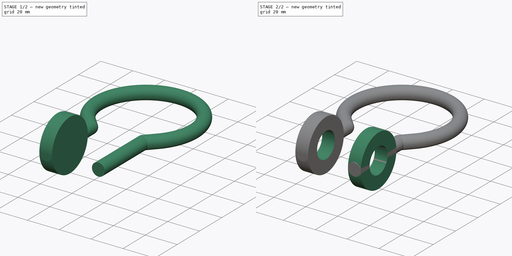
[diagram: build sequence overview — one tinted view per stage of 2, left to right]
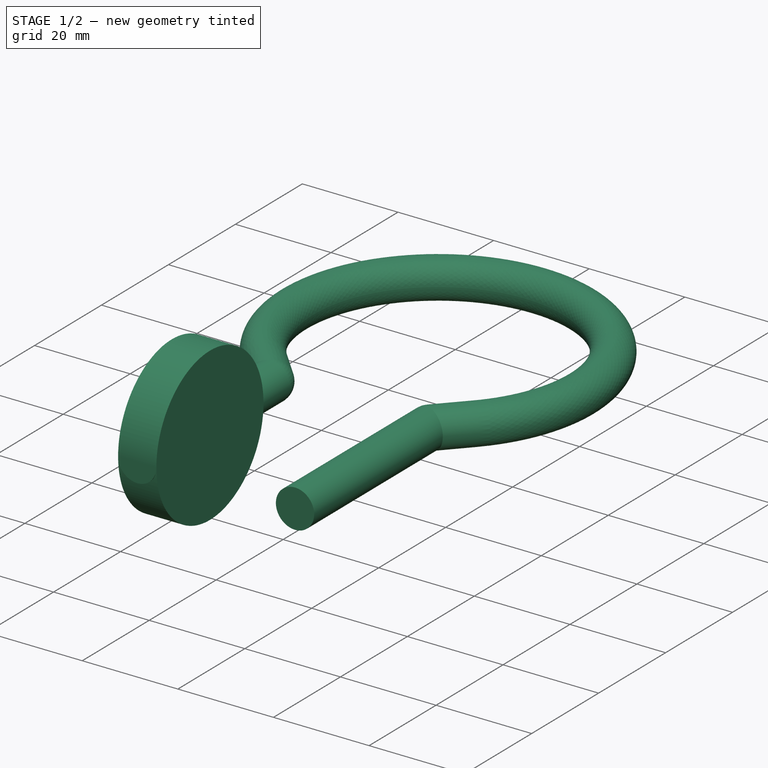
[diagram: stage 1 of 2 — iso view after this stage's code; geometry added in this stage tinted green]
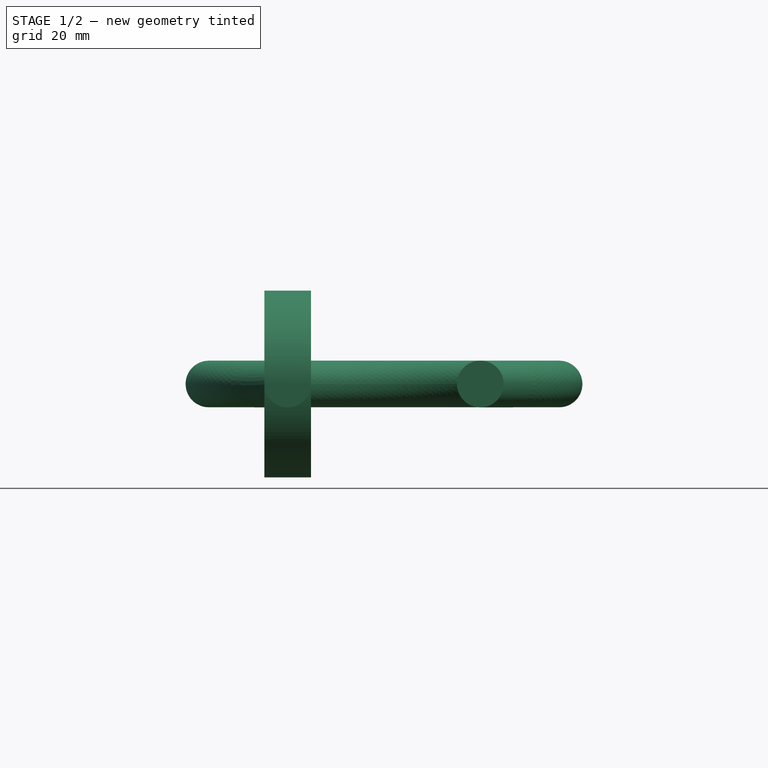
[diagram: stage 1 of 2 — front view after this stage's code; geometry added in this stage tinted green]
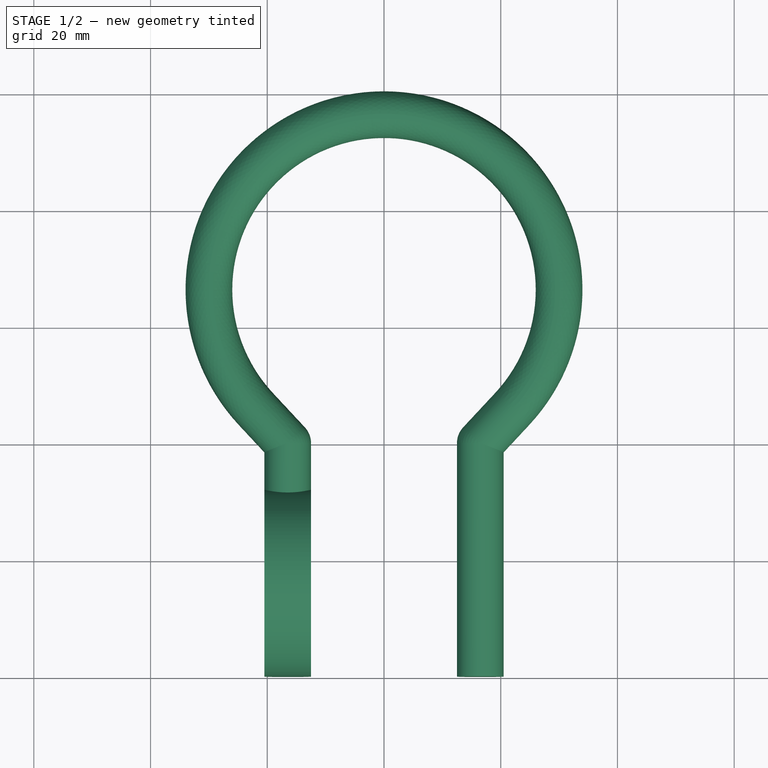
[diagram: stage 1 of 2 — top view after this stage's code; geometry added in this stage tinted green]
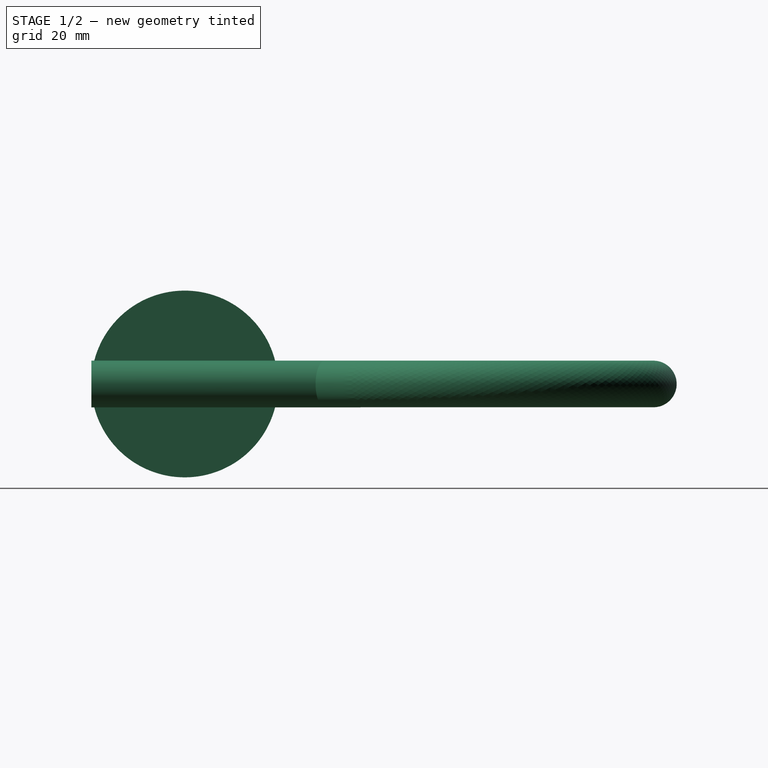
[diagram: stage 1 of 2 — right view after this stage's code; geometry added in this stage tinted green]
FCSTD DOCUMENT  (FreeCAD 0.17R11586 (Git))
Label: support knob
License: All rights reserved
LicenseURL: http://en.wikipedia.org/wiki/All_rights_reserved
objects: Sketcher::SketchObject×5, PartDesign::Plane×3, PartDesign::Pad×2, PartDesign::AdditivePipe×1, PartDesign::Pocket×1, PartDesign::Body×1
note: 17 computed .brp shape members not serialized (recipe doc carries the construction recipe); baked Part::Feature solids carry a one-line shape summary decoded from their .brp

FEATURE [Sketcher::SketchObject] Sketch
  MapMode = 5
  Support = -> [XY_Plane]
  sketch-geometry (5):
    g0: ArcOfCircle CenterX=0 CenterY=66.3011 CenterZ=0 NormalX=0 NormalY=0 NormalZ=1 Radius=30 StartAngle=5.53328 EndAngle=10.1747
    g1: LineSegment StartX=16.5 StartY=40 StartZ=0 EndX=16.5 EndY=0 EndZ=0
    g2: LineSegment StartX=-16.5 StartY=40 StartZ=0 EndX=-16.5 EndY=0 EndZ=0
    g3: LineSegment StartX=-21.9526 StartY=45.854 StartZ=0 EndX=-16.5 EndY=40 EndZ=0
    g4: LineSegment StartX=21.9526 StartY=45.854 StartZ=0 EndX=16.5 EndY=40 EndZ=0
  constraints (18):
    c: Vertical(g1)
    c: Vertical(g2)
    c: DistanceX(g2,g1) = 33
    c: DistanceY(g1,g1) = 40
    c: Equal(g2,g1)
    c: PointOnObject(g1,g-1)
    c: PointOnObject(g2,g-1)
    c: Coincident(g3,g2)
    c: Coincident(g4,g1)
    c: Coincident(g4,g0)
    c: Coincident(g3,g0)
    c: PointOnObject(g0,g-2)
    c: Symmetric(g0,g0,g-2)
    c: Symmetric(g2,g1,g-2)
    c: Distance(g4) = 8
    c: Equal(g3,g4)
    c: Tangent(g0,g4)
    c: Radius(g0) = 30
FEATURE [PartDesign::Plane] DatumPlane
  MapMode = 7
  Placement = pos=(16.5,0,0) rot=(0,0.707107,0.707107;3.14159rad)
  Support = -> [Sketch]
FEATURE [Sketcher::SketchObject] Sketch001
  MapMode = 5
  Placement = pos=(16.5,0,0) rot=(0,0.707107,0.707107;3.14159rad)
  Support = -> [DatumPlane]
  sketch-geometry (1):
    g0: Circle CenterX=0 CenterY=0 CenterZ=0 NormalX=0 NormalY=0 NormalZ=1 Radius=4
  constraints (2):
    c: Coincident(g0,g-1)
    c: Radius(g0) = 4
FEATURE [PartDesign::AdditivePipe] AdditivePipe
  AuxilleryCurvelinear = true
  AuxillerySpineTangent = false
  Binormal = (0,0,0)
  Mode = 0
  Placement = pos=(16.5,0,0) rot=(0,0.707107,0.707107;3.14159rad)
  Profile = -> Sketch001
  Spine = -> Sketch
  SpineTangent = false
  Transformation = 0
  Transition = 2
FEATURE [PartDesign::Plane] DatumPlane001
  MapMode = 6
  Placement = pos=(-12.5,0,0) rot=(0,1,0;1.5708rad)
  Support = -> [AdditivePipe]
FEATURE [Sketcher::SketchObject] Sketch002
  MapMode = 5
  Placement = pos=(-12.5,0,0) rot=(0,1,0;1.5708rad)
  Support = -> [DatumPlane001]
  sketch-geometry (1):
    g0: Circle CenterX=0 CenterY=16 CenterZ=0 NormalX=0 NormalY=0 NormalZ=1 Radius=16
  constraints (3):
    c: PointOnObject(g0,g-2)
    c: Tangent(g0,g-1)
    c: Radius(g0) = 16
FEATURE [PartDesign::Pad] Pad
  BaseFeature = -> AdditivePipe
  Length = 8
  Length2 = 100
  Placement = pos=(16.5,0,0) rot=(0,0.707107,0.707107;3.14159rad)
  Profile = -> Sketch002
  Reversed = true
  Type = 0
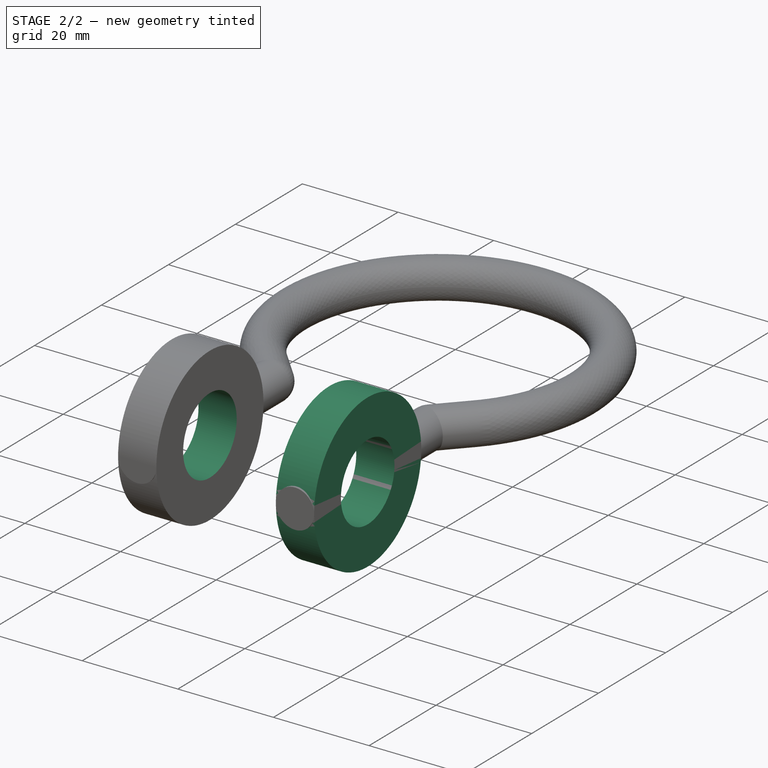
[diagram: stage 2 of 2 — iso view after this stage's code; geometry added in this stage tinted green]
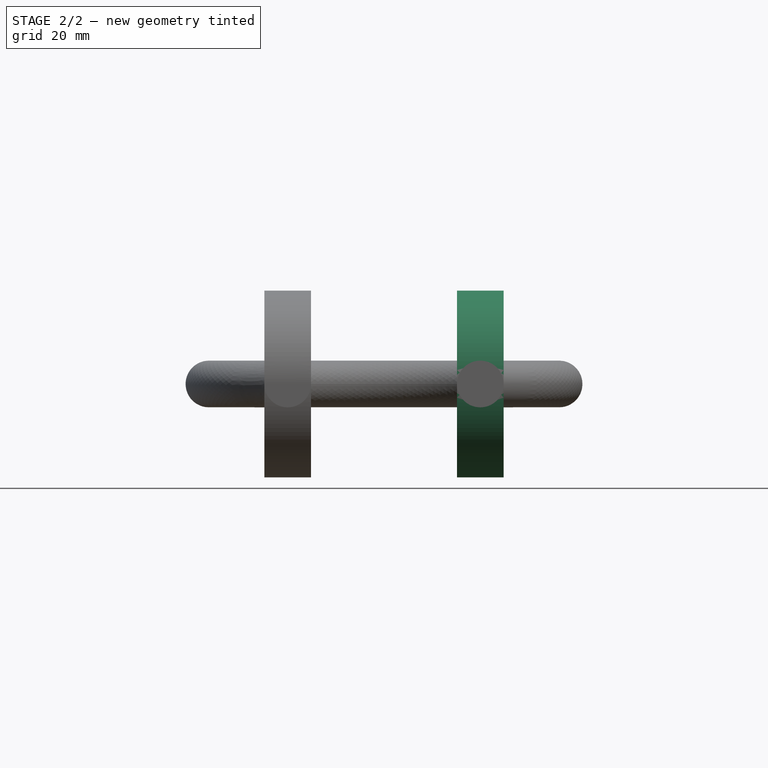
[diagram: stage 2 of 2 — front view after this stage's code; geometry added in this stage tinted green]
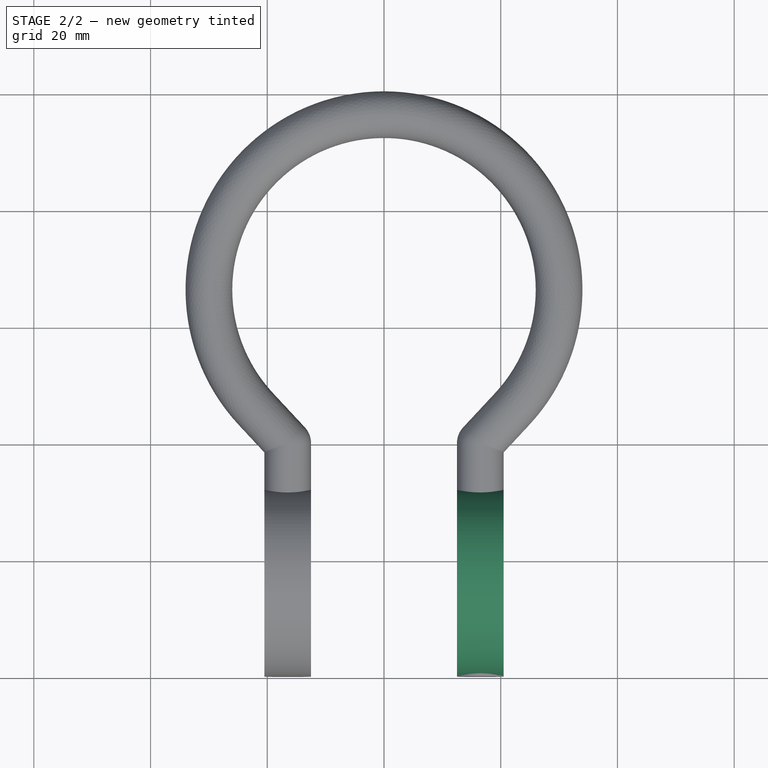
[diagram: stage 2 of 2 — top view after this stage's code; geometry added in this stage tinted green]
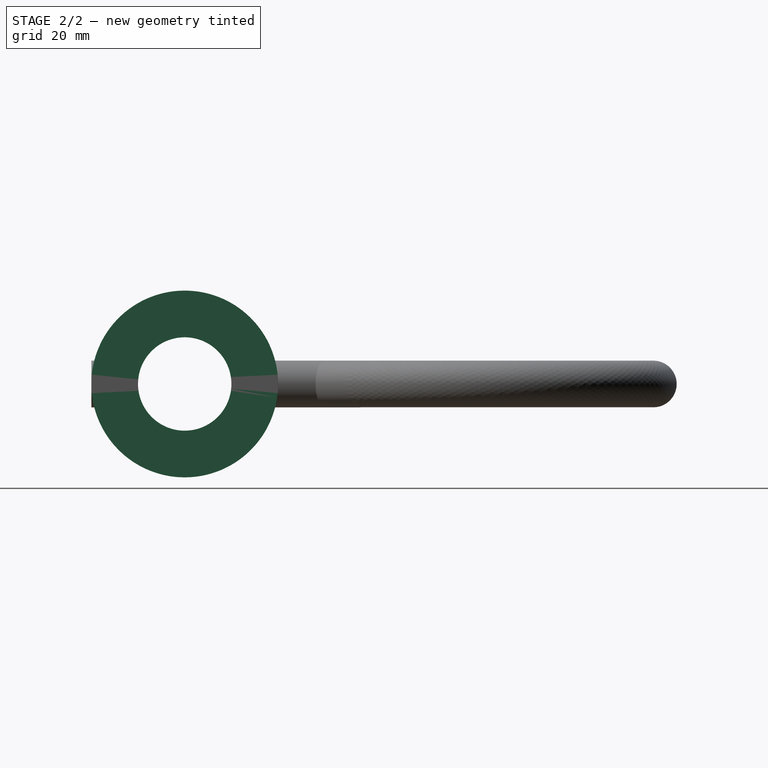
[diagram: stage 2 of 2 — right view after this stage's code; geometry added in this stage tinted green]
FEATURE [PartDesign::Plane] DatumPlane002
  MapMode = 6
  Placement = pos=(12.5,0,0) rot=(-0.707107,0,0.707107;3.14159rad)
  Support = -> [Pad]
FEATURE [Sketcher::SketchObject] Sketch003
  MapMode = 5
  Placement = pos=(12.5,0,0) rot=(-0.707107,0,0.707107;3.14159rad)
  Support = -> [DatumPlane002]
  sketch-geometry (1):
    g0: Circle CenterX=0 CenterY=-16 CenterZ=0 NormalX=0 NormalY=0 NormalZ=1 Radius=16
  constraints (3):
    c: PointOnObject(g0,g-2)
    c: Tangent(g0,g-1)
    c: Radius(g0) = 16
FEATURE [PartDesign::Pad] Pad001
  BaseFeature = -> Pad
  Length = 8
  Length2 = 100
  Placement = pos=(16.5,0,0) rot=(0,0.707107,0.707107;3.14159rad)
  Profile = -> Sketch003
  Reversed = true
  Type = 0
FEATURE [Sketcher::SketchObject] Sketch004
  ExternalGeometry = -> [Pad001]
  MapMode = 5
  Placement = pos=(20.5,0,0) rot=(0,1,0;1.5708rad)
  Support = -> [Pad001]
  sketch-geometry (1):
    g0: Circle CenterX=0 CenterY=16 CenterZ=0 NormalX=0 NormalY=0 NormalZ=1 Radius=8
  constraints (2):
    c: Coincident(g0,g-3)
    c: Radius(g0) = 8
FEATURE [PartDesign::Pocket] Pocket
  BaseFeature = -> Pad001
  Length = 60
  Placement = pos=(16.5,0,0) rot=(0,0.707107,0.707107;3.14159rad)
  Profile = -> Sketch004
  Type = 0
FEATURE [PartDesign::Body] Body
  Group = -> [Sketch,DatumPlane,Sketch001,AdditivePipe,DatumPlane001,Sketch002,Pad,DatumPlane002,Sketch003,Pad001,Sketch004,Pocket]
  Origin = -> Origin
  Tip = -> Pocket
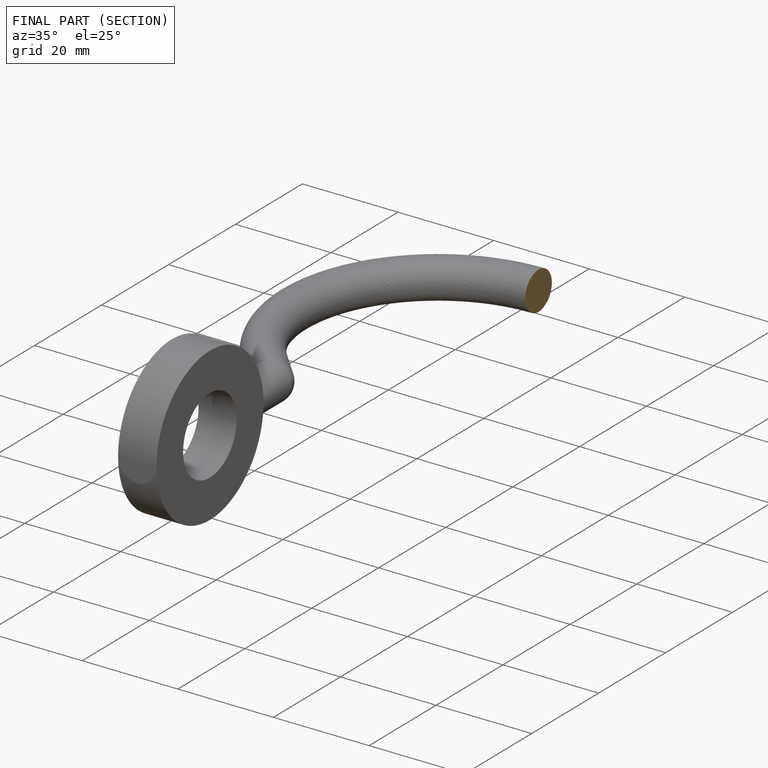
[diagram: finished part — half-section view (interior)]
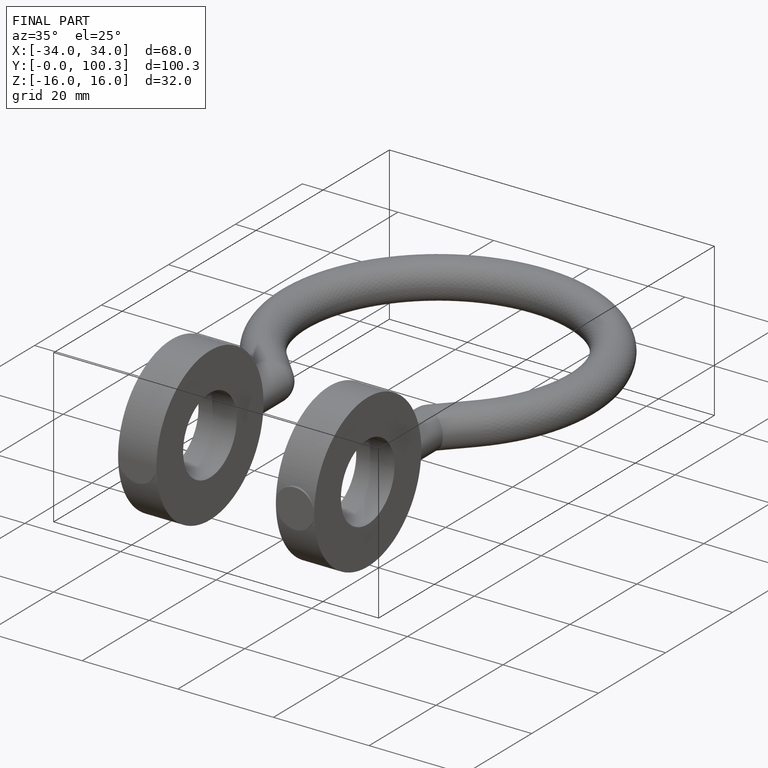
[diagram: finished part — iso view with bounding-box wireframe]
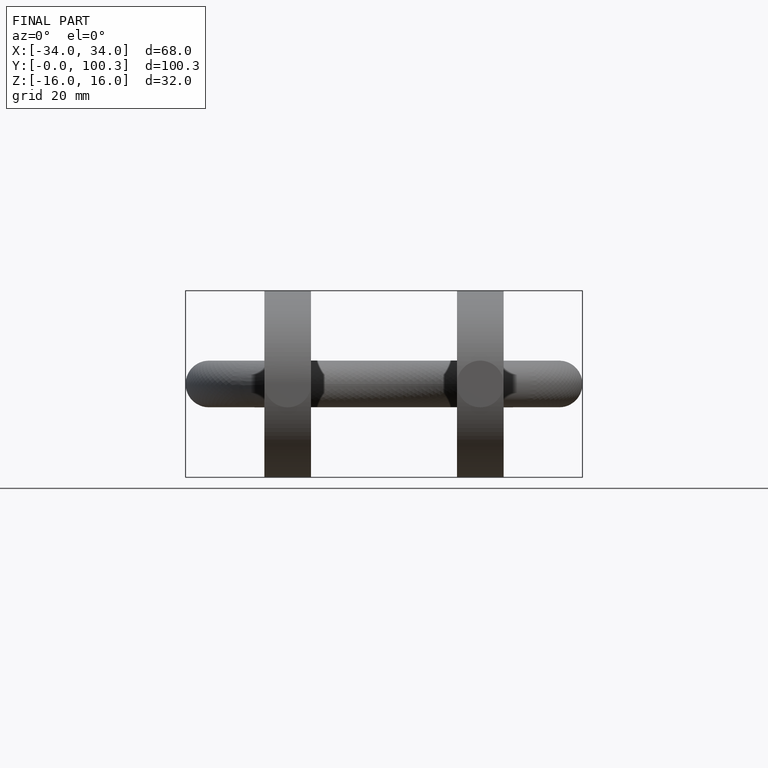
[diagram: finished part — front view with bounding-box wireframe]
